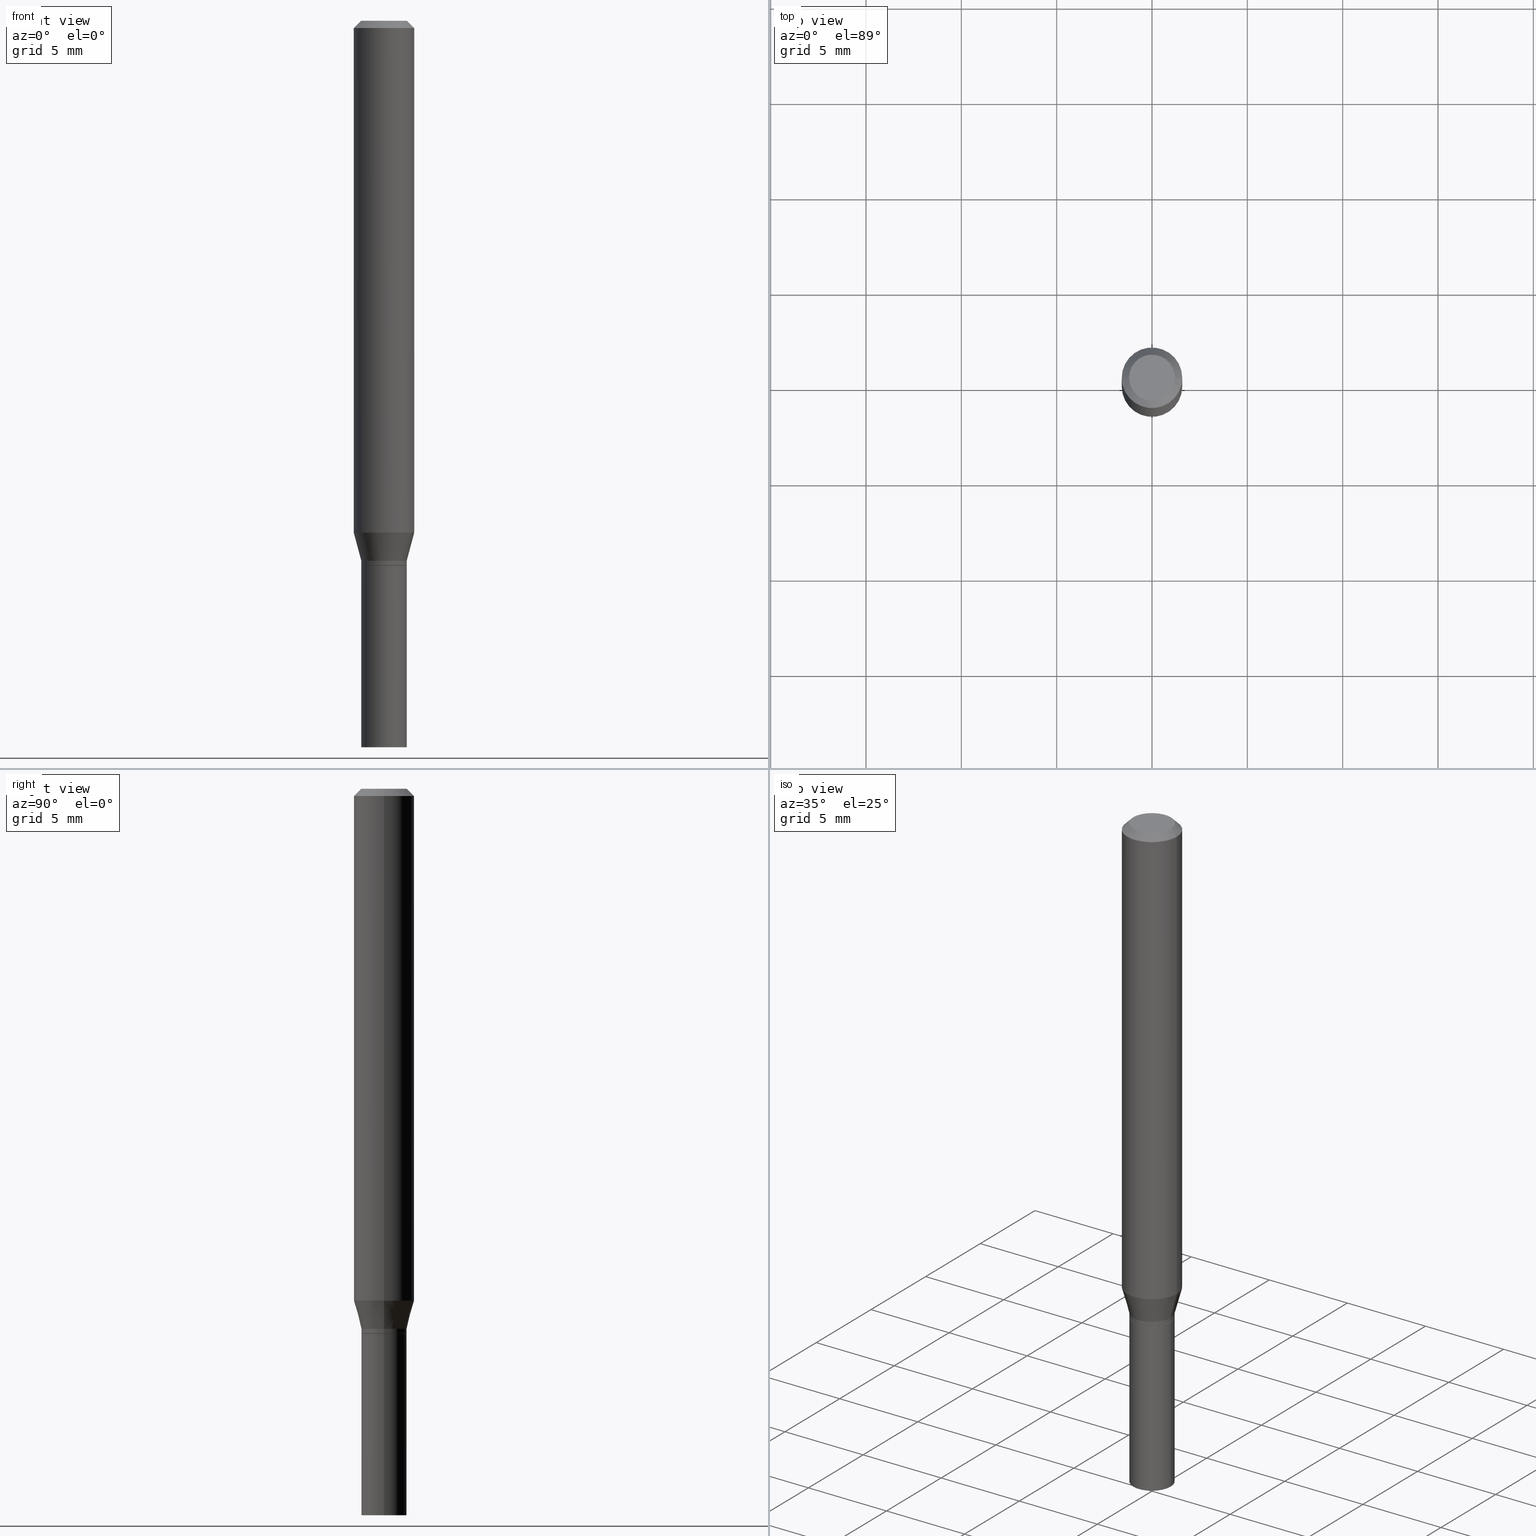
[diagram: canonical four-view strip — front | top / right | iso, engineering-drawing reading convention]
A machine part, canonical four-view strip (front | top / right | iso — engineering-drawing reading convention). The complete STEP part file that produces these views, byte-faithful:
ISO-10303-21;
HEADER;
FILE_DESCRIPTION (( 'STEP AP203' ),
    '1' );
FILE_NAME ('35301.STEP',
    '2024-03-13T16:39:58',
    ( '' ),
    ( '' ),
    'SwSTEP 2.0',
    'SolidWorks 2023',
    '' );
FILE_SCHEMA (( 'CONFIG_CONTROL_DESIGN' ));
ENDSEC;

DATA;
#1 = CARTESIAN_POINT ( 'NONE',  ( 2.726697718896427687E-29, -3.893001692810107575E-15, -1.115000000000000213 ) ) ;
#2 = DIRECTION ( 'NONE',  ( 1.000000000000000000, -6.982962677686266711E-15, 0.000000000000000000 ) ) ;
#3 = APPROVAL ( #191, 'UNSPECIFIED' ) ;
#4 = CARTESIAN_POINT ( 'NONE',  ( -0.04690000000000005970, -3.592926222457630359E-15, -1.124500000000000055 ) ) ;
#5 = DIRECTION ( 'NONE',  ( -1.000000000000000000, 6.982962677686266711E-15, 0.000000000000000000 ) ) ;
#6 = LOCAL_TIME ( 12, 39, 58.00000000000000000, #42 ) ;
#7 = CARTESIAN_POINT ( 'NONE',  ( 2.749929672555186430E-29, -3.926170765529117721E-15, -1.124500000000000055 ) ) ;
#8 = CIRCLE ( 'NONE', #80, 0.04639999999999999680 ) ;
#9 = EDGE_CURVE ( 'NONE', #27, #260, #128, .T. ) ;
#10 = CARTESIAN_POINT ( 'NONE',  ( 3.668203209277705088E-31, -5.237222008264718399E-17, -0.01499999999999999944 ) ) ;
#11 = DIRECTION ( 'NONE',  ( 0.7071067811865656694, -2.468850131082446387E-15, 0.7071067811865294761 ) ) ;
#12 = CARTESIAN_POINT ( 'NONE',  ( 3.316907271900976096E-16, 0.04749999999999999362, -2.863946871395908498E-16 ) ) ;
#13 = APPROVAL_DATE_TIME ( #201, #177 ) ;
#14 = APPROVAL_DATE_TIME ( #453, #255 ) ;
#15 = EDGE_CURVE ( 'NONE', #219, #146, #91, .T. ) ;
#16 = AXIS2_PLACEMENT_3D ( 'NONE', #160, #368, #300 ) ;
#17 = LOCAL_TIME ( 12, 39, 58.00000000000000000, #86 ) ;
#18 = EDGE_CURVE ( 'NONE', #219, #454, #232, .T. ) ;
#19 = CIRCLE ( 'NONE', #159, 0.04689999999999999725 ) ;
#20 = ORIENTED_EDGE ( 'NONE', *, *, #287, .F. ) ;
#21 = VERTEX_POINT ( 'NONE', #30 ) ;
#22 = ORGANIZATION ( 'UNSPECIFIED', 'UNSPECIFIED', '' ) ;
#23 = EDGE_LOOP ( 'NONE', ( #20, #416 ) ) ;
#24 = CARTESIAN_POINT ( 'NONE',  ( 2.584322543101508946E-29, -3.689727675106347649E-15, -1.056780007401926458 ) ) ;
#25 = EDGE_LOOP ( 'NONE', ( #102, #104, #178, #288 ) ) ;
#26 = DIRECTION ( 'NONE',  ( -2.445468806185136597E-29, 3.491481338843145583E-15, 1.000000000000000000 ) ) ;
#27 = VERTEX_POINT ( 'NONE', #4 ) ;
#28 = ORIENTED_EDGE ( 'NONE', *, *, #145, .T. ) ;
#29 = AXIS2_PLACEMENT_3D ( 'NONE', #256, #296, #73 ) ;
#30 = CARTESIAN_POINT ( 'NONE',  ( 0.04689999999999999725, -5.564722957848204079E-15, -1.500000000000000222 ) ) ;
#31 = LINE ( 'NONE', #83, #350 ) ;
#32 = PERSON_AND_ORGANIZATION ( #59, #22 ) ;
#33 = DIRECTION ( 'NONE',  ( 1.000000000000000000, -6.982962677686270655E-15, 0.000000000000000000 ) ) ;
#34 = APPLICATION_CONTEXT ( 'configuration controlled 3d designs of mechanical parts and assemblies' ) ;
#35 = PERSON_AND_ORGANIZATION ( #59, #22 ) ;
#36 = FACE_OUTER_BOUND ( 'NONE', #69, .T. ) ;
#37 = LINE ( 'NONE', #273, #89 ) ;
#38 = MANIFOLD_SOLID_BREP ( 'Body-Move/Copy2[2]', #90 ) ;
#39 = DIRECTION ( 'NONE',  ( -2.445468806185136597E-29, 3.491481338843145583E-15, 1.000000000000000000 ) ) ;
#40 = CIRCLE ( 'NONE', #99, 0.04690000000000005970 ) ;
#41 = CARTESIAN_POINT ( 'NONE',  ( 0.06250000000000000000, -4.126162842461739318E-15, -1.056780007401926458 ) ) ;
#42 = COORDINATED_UNIVERSAL_TIME_OFFSET ( 5, 0, .BEHIND. ) ;
#43 = CARTESIAN_POINT ( 'NONE',  ( -0.04689999999999999725, -4.249324714160141733E-15, -1.500000000000000222 ) ) ;
#44 = LINE ( 'NONE', #196, #319 ) ;
#45 = DIRECTION ( 'NONE',  ( -2.445468806185136877E-29, 3.491481338843145188E-15, 1.000000000000000000 ) ) ;
#46 = EDGE_CURVE ( 'NONE', #123, #21, #19, .T. ) ;
#47 = PERSON_AND_ORGANIZATION ( #59, #22 ) ;
#48 = DIRECTION ( 'NONE',  ( 1.000000000000000000, -6.982962677686265922E-15, 4.876176775795935793E-29 ) ) ;
#49 = EDGE_LOOP ( 'NONE', ( #125, #391, #353, #461 ) ) ;
#50 = PERSON_AND_ORGANIZATION_ROLE ( 'classification_officer' ) ;
#51 = DIRECTION ( 'NONE',  ( 1.000000000000000000, -6.982962677686268288E-15, 0.000000000000000000 ) ) ;
#52 = VECTOR ( 'NONE', #227, 39.37007874015748854 ) ;
#53 = ORIENTED_EDGE ( 'NONE', *, *, #287, .T. ) ;
#54 = EDGE_CURVE ( 'NONE', #454, #272, #222, .T. ) ;
#55 = FACE_OUTER_BOUND ( 'NONE', #250, .T. ) ;
#56 = SECURITY_CLASSIFICATION ( '', '', #448 ) ;
#57 =( CONVERSION_BASED_UNIT ( 'INCH', #213 ) LENGTH_UNIT ( ) NAMED_UNIT ( #151 ) );
#58 = CARTESIAN_POINT ( 'NONE',  ( 3.668203209277704895E-29, -5.237222008264718177E-15, -1.500000000000000222 ) ) ;
#59 = PERSON ( 'UNSPECIFIED', 'UNSPECIFIED', 'UNSPECIFIED', ('UNSPECIFIED'), ('UNSPECIFIED'), ('UNSPECIFIED') ) ;
#60 = CIRCLE ( 'NONE', #388, 0.06250000000000000000 ) ;
#61 = EDGE_CURVE ( 'NONE', #383, #62, #465, .T. ) ;
#62 = VERTEX_POINT ( 'NONE', #325 ) ;
#63 = ADVANCED_BREP_SHAPE_REPRESENTATION ( '35301', ( #360, #38, #245 ), #455 ) ;
#64 = VERTEX_POINT ( 'NONE', #144 ) ;
#65 = DIRECTION ( 'NONE',  ( -2.445468806185136597E-29, 3.491481338843145583E-15, 1.000000000000000000 ) ) ;
#66 = CONICAL_SURFACE ( 'NONE', #98, 0.06250000000000000000, 0.7853981633974563836 ) ;
#67 = ORIENTED_EDGE ( 'NONE', *, *, #199, .F. ) ;
#68 = AXIS2_PLACEMENT_3D ( 'NONE', #321, #105, #251 ) ;
#69 = EDGE_LOOP ( 'NONE', ( #415, #425, #185, #100 ) ) ;
#70 = VERTEX_POINT ( 'NONE', #357 ) ;
#71 = DIRECTION ( 'NONE',  ( 1.000000000000000000, -6.982962677686256455E-15, 0.000000000000000000 ) ) ;
#72 = CIRCLE ( 'NONE', #68, 0.06250000000000000000 ) ;
#73 = DIRECTION ( 'NONE',  ( 1.000000000000000000, -6.982962677686267499E-15, 4.852736867747366768E-29 ) ) ;
#74 = APPLICATION_PROTOCOL_DEFINITION ( 'international standard', 'config_control_design', 1994, #34 ) ;
#75 = ADVANCED_FACE ( 'NONE', ( #110 ), #137, .T. ) ;
#76 = CARTESIAN_POINT ( 'NONE',  ( 2.751152406958279232E-29, -3.927916506198539224E-15, -1.125000000000000222 ) ) ;
#77 = DIRECTION ( 'NONE',  ( -2.445468806185136597E-29, 3.491481338843145583E-15, 1.000000000000000000 ) ) ;
#78 = FACE_OUTER_BOUND ( 'NONE', #433, .T. ) ;
#79 = EDGE_CURVE ( 'NONE', #238, #320, #457, .T. ) ;
#80 = AXIS2_PLACEMENT_3D ( 'NONE', #114, #309, #343 ) ;
#81 = DIRECTION ( 'NONE',  ( 1.000000000000000000, -6.982962677686265922E-15, 4.876176775795935232E-29 ) ) ;
#82 = LINE ( 'NONE', #237, #240 ) ;
#83 = CARTESIAN_POINT ( 'NONE',  ( -0.04690000000000017766, -3.559757149738619424E-15, -1.115000000000000213 ) ) ;
#84 = DATE_TIME_ROLE ( 'classification_date' ) ;
#85 = DIRECTION ( 'NONE',  ( 1.000000000000000000, -6.982962677686268288E-15, 0.000000000000000000 ) ) ;
#86 = COORDINATED_UNIVERSAL_TIME_OFFSET ( 5, 0, .BEHIND. ) ;
#87 = CC_DESIGN_PERSON_AND_ORGANIZATION_ASSIGNMENT ( #130, #281, ( #322 ) ) ;
#88 = ORIENTED_EDGE ( 'NONE', *, *, #211, .F. ) ;
#89 = VECTOR ( 'NONE', #11, 39.37007874015748143 ) ;
#90 = CLOSED_SHELL ( 'NONE', ( #223, #243, #458, #195, #97, #75, #92, #295, #445, #334, #408, #462 ) ) ;
#91 = LINE ( 'NONE', #398, #356 ) ;
#92 = ADVANCED_FACE ( 'NONE', ( #112 ), #226, .T. ) ;
#93 = COORDINATED_UNIVERSAL_TIME_OFFSET ( 5, 0, .BEHIND. ) ;
#94 = CARTESIAN_POINT ( 'NONE',  ( -0.04690000000000017766, -3.402697807497452228E-15, -1.115000000000000213 ) ) ;
#95 = ORIENTED_EDGE ( 'NONE', *, *, #18, .F. ) ;
#96 = CARTESIAN_POINT ( 'NONE',  ( 3.668203209277705088E-31, -5.237222008264718399E-17, -0.01499999999999999944 ) ) ;
#97 = ADVANCED_FACE ( 'NONE', ( #183 ), #258, .T. ) ;
#98 = AXIS2_PLACEMENT_3D ( 'NONE', #96, #133, #417 ) ;
#99 = AXIS2_PLACEMENT_3D ( 'NONE', #7, #39, #51 ) ;
#100 = ORIENTED_EDGE ( 'NONE', *, *, #162, .F. ) ;
#101 = DIRECTION ( 'NONE',  ( 0.2588190451025214611, 1.565188264969620982E-15, 0.9659258262890679791 ) ) ;
#102 = ORIENTED_EDGE ( 'NONE', *, *, #280, .F. ) ;
#103 = APPROVAL_ROLE ( '' ) ;
#104 = ORIENTED_EDGE ( 'NONE', *, *, #154, .T. ) ;
#105 = DIRECTION ( 'NONE',  ( -2.445468806185136597E-29, 3.491481338843145583E-15, 1.000000000000000000 ) ) ;
#106 = ORIENTED_EDGE ( 'NONE', *, *, #119, .T. ) ;
#107 = CIRCLE ( 'NONE', #329, 0.04689999999999999725 ) ;
#108 = DIRECTION ( 'NONE',  ( 1.000000000000000000, -6.982962677686266711E-15, 0.000000000000000000 ) ) ;
#109 = ORIENTED_EDGE ( 'NONE', *, *, #15, .T. ) ;
#110 = FACE_OUTER_BOUND ( 'NONE', #25, .T. ) ;
#111 = AXIS2_PLACEMENT_3D ( 'NONE', #373, #189, #81 ) ;
#112 = FACE_OUTER_BOUND ( 'NONE', #289, .T. ) ;
#113 = DIRECTION ( 'NONE',  ( -2.445468806185136597E-29, 3.491481338843145583E-15, 1.000000000000000000 ) ) ;
#114 = CARTESIAN_POINT ( 'NONE',  ( 2.751152406958279232E-29, -3.927916506198539224E-15, -1.125000000000000222 ) ) ;
#115 = CARTESIAN_POINT ( 'NONE',  ( 3.275009495835134632E-16, 0.04689999999999607677, -1.125000000000000222 ) ) ;
#116 = FACE_OUTER_BOUND ( 'NONE', #361, .T. ) ;
#117 = DIRECTION ( 'NONE',  ( 2.445468806185136597E-29, -3.491481338843145583E-15, -1.000000000000000000 ) ) ;
#118 = AXIS2_PLACEMENT_3D ( 'NONE', #10, #77, #344 ) ;
#119 = EDGE_CURVE ( 'NONE', #454, #219, #72, .T. ) ;
#120 = CALENDAR_DATE ( 2024, 13, 3 ) ;
#121 = CARTESIAN_POINT ( 'NONE',  ( 2.749929672555186430E-29, -3.926170765529117721E-15, -1.124500000000000055 ) ) ;
#122 = AXIS2_PLACEMENT_3D ( 'NONE', #24, #290, #33 ) ;
#123 = VERTEX_POINT ( 'NONE', #43 ) ;
#124 = CARTESIAN_POINT ( 'NONE',  ( 0.06250000000000000000, -4.811533449433679005E-16, -0.01499999999999999944 ) ) ;
#125 = ORIENTED_EDGE ( 'NONE', *, *, #18, .T. ) ;
#126 = ORIENTED_EDGE ( 'NONE', *, *, #46, .T. ) ;
#127 = EDGE_CURVE ( 'NONE', #70, #64, #8, .T. ) ;
#128 = LINE ( 'NONE', #277, #308 ) ;
#129 = CIRCLE ( 'NONE', #402, 0.04690000000000017766 ) ;
#130 = PERSON_AND_ORGANIZATION ( #59, #22 ) ;
#131 = CYLINDRICAL_SURFACE ( 'NONE', #348, 0.04690000000000012215 ) ;
#132 = EDGE_CURVE ( 'NONE', #224, #27, #40, .T. ) ;
#133 = DIRECTION ( 'NONE',  ( 2.445468806185136597E-29, -3.491481338843145583E-15, -1.000000000000000000 ) ) ;
#134 = ORIENTED_EDGE ( 'NONE', *, *, #216, .F. ) ;
#135 = FACE_OUTER_BOUND ( 'NONE', #242, .T. ) ;
#136 = APPROVAL_PERSON_ORGANIZATION ( #212, #255, #103 ) ;
#137 = CONICAL_SURFACE ( 'NONE', #293, 0.04690000000000017766, 0.2617993877991501850 ) ;
#138 = DIRECTION ( 'NONE',  ( -2.445468806185136597E-29, 3.491481338843145583E-15, 1.000000000000000000 ) ) ;
#139 = VECTOR ( 'NONE', #306, 39.37007874015748143 ) ;
#140 = ORIENTED_EDGE ( 'NONE', *, *, #434, .F. ) ;
#141 = APPROVAL_STATUS ( 'not_yet_approved' ) ;
#142 = ORIENTED_EDGE ( 'NONE', *, *, #313, .F. ) ;
#143 = ORIENTED_EDGE ( 'NONE', *, *, #79, .F. ) ;
#144 = CARTESIAN_POINT ( 'NONE',  ( -0.04639999999999999680, -3.595575449631741560E-15, -1.125000000000000222 ) ) ;
#145 = EDGE_CURVE ( 'NONE', #238, #146, #446, .T. ) ;
#146 = VERTEX_POINT ( 'NONE', #165 ) ;
#147 = DIRECTION ( 'NONE',  ( 1.000000000000000000, -6.982962677686271444E-15, 0.000000000000000000 ) ) ;
#148 = DIRECTION ( 'NONE',  ( -2.445468806185136597E-29, 3.491481338843145583E-15, 1.000000000000000000 ) ) ;
#149 = EDGE_LOOP ( 'NONE', ( #53, #253, #285, #181 ) ) ;
#150 = AXIS2_PLACEMENT_3D ( 'NONE', #121, #413, #85 ) ;
#151 = DIMENSIONAL_EXPONENTS ( 1.000000000000000000, 0.000000000000000000, 0.000000000000000000, 0.000000000000000000, 0.000000000000000000, 0.000000000000000000, 0.000000000000000000 ) ;
#152 = DIRECTION ( 'NONE',  ( 1.000000000000000000, -6.982962677686256455E-15, 0.000000000000000000 ) ) ;
#153 = ORIENTED_EDGE ( 'NONE', *, *, #349, .T. ) ;
#154 = EDGE_CURVE ( 'NONE', #260, #317, #424, .T. ) ;
#155 = DIRECTION ( 'NONE',  ( -2.445468806185136597E-29, 3.491481338843145583E-15, 1.000000000000000000 ) ) ;
#156 = CARTESIAN_POINT ( 'NONE',  ( 3.668203209277704895E-29, -5.237222008264718177E-15, -1.500000000000000222 ) ) ;
#157 = DIRECTION ( 'NONE',  ( -2.445468806185136597E-29, 3.491481338843145583E-15, 1.000000000000000000 ) ) ;
#158 = DIRECTION ( 'NONE',  ( -0.2588190451025214611, 5.211531920934550253E-15, 0.9659258262890679791 ) ) ;
#159 = AXIS2_PLACEMENT_3D ( 'NONE', #156, #65, #152 ) ;
#160 = CARTESIAN_POINT ( 'NONE',  ( 2.726697718896427687E-29, -3.893001692810107575E-15, -1.115000000000000213 ) ) ;
#161 = CARTESIAN_POINT ( 'NONE',  ( 2.751152406958279232E-29, -3.927916506198539224E-15, -1.125000000000000222 ) ) ;
#162 = EDGE_CURVE ( 'NONE', #27, #224, #341, .T. ) ;
#163 = DIRECTION ( 'NONE',  ( -2.445468806185136877E-29, 3.491481338843145188E-15, 1.000000000000000000 ) ) ;
#164 = PERSON_AND_ORGANIZATION_ROLE ( 'creator' ) ;
#165 = CARTESIAN_POINT ( 'NONE',  ( 0.06250000000000000000, -4.888073874380388472E-16, -0.01499999999999999944 ) ) ;
#166 = CARTESIAN_POINT ( 'NONE',  ( 5.895992206697911344E-45, -8.417914271318623889E-31, -2.410986470890829067E-16 ) ) ;
#167 = AXIS2_PLACEMENT_3D ( 'NONE', #331, #220, #108 ) ;
#168 = COORDINATED_UNIVERSAL_TIME_OFFSET ( 5, 0, .BEHIND. ) ;
#169 = EDGE_CURVE ( 'NONE', #317, #219, #172, .T. ) ;
#170 = ORIENTED_EDGE ( 'NONE', *, *, #127, .F. ) ;
#171 = DIRECTION ( 'NONE',  ( 1.000000000000000000, -6.982962677686266711E-15, 4.876176775795935793E-29 ) ) ;
#172 = LINE ( 'NONE', #312, #423 ) ;
#173 = CONICAL_SURFACE ( 'NONE', #200, 0.04639999999999999680, 0.7853981633974739252 ) ;
#174 = CONICAL_SURFACE ( 'NONE', #436, 0.06250000000000000000, 0.7853981633974563836 ) ;
#175 = ADVANCED_FACE ( 'NONE', ( #135 ), #450, .T. ) ;
#176 = DIRECTION ( 'NONE',  ( -2.445468806185136597E-29, 3.491481338843145583E-15, 1.000000000000000000 ) ) ;
#177 = APPROVAL ( #261, 'UNSPECIFIED' ) ;
#178 = ORIENTED_EDGE ( 'NONE', *, *, #169, .T. ) ;
#179 = LOCAL_TIME ( 12, 39, 58.00000000000000000, #93 ) ;
#180 = ORIENTED_EDGE ( 'NONE', *, *, #79, .T. ) ;
#181 = ORIENTED_EDGE ( 'NONE', *, *, #182, .F. ) ;
#182 = EDGE_CURVE ( 'NONE', #21, #383, #208, .T. ) ;
#183 = FACE_OUTER_BOUND ( 'NONE', #456, .T. ) ;
#184 = CARTESIAN_POINT ( 'NONE',  ( 3.668203209277705088E-31, -5.237222008264718399E-17, -0.01499999999999999944 ) ) ;
#185 = ORIENTED_EDGE ( 'NONE', *, *, #434, .T. ) ;
#186 = DIRECTION ( 'NONE',  ( 1.000000000000000000, -6.982962677686271444E-15, 0.000000000000000000 ) ) ;
#187 = CIRCLE ( 'NONE', #451, 0.04689999999999999725 ) ;
#188 = CARTESIAN_POINT ( 'NONE',  ( -0.06250000000000000000, 4.440892098500626162E-16, -3.074334431409316114E-30 ) ) ;
#189 = DIRECTION ( 'NONE',  ( -2.445468806185136597E-29, 3.491481338843145583E-15, 1.000000000000000000 ) ) ;
#190 = DIRECTION ( 'NONE',  ( -2.445468806185136597E-29, 3.491481338843145583E-15, 1.000000000000000000 ) ) ;
#191 = APPROVAL_STATUS ( 'not_yet_approved' ) ;
#192 = CARTESIAN_POINT ( 'NONE',  ( 0.04690000000000012215, -3.275009495834867406E-16, 2.286926907848299643E-30 ) ) ;
#193 = DIRECTION ( 'NONE',  ( 0.000000000000000000, 0.000000000000000000, 1.000000000000000000 ) ) ;
#194 = CC_DESIGN_APPROVAL ( #3, ( #56 ) ) ;
#195 = ADVANCED_FACE ( 'NONE', ( #304 ), #335, .T. ) ;
#196 = CARTESIAN_POINT ( 'NONE',  ( -0.04639999999999999680, -3.598224676805852761E-15, -1.125000000000000222 ) ) ;
#197 = EDGE_LOOP ( 'NONE', ( #427, #396, #393, #153 ) ) ;
#198 = CARTESIAN_POINT ( 'NONE',  ( 0.000000000000000000, 0.000000000000000000, 0.000000000000000000 ) ) ;
#199 = EDGE_CURVE ( 'NONE', #317, #260, #129, .T. ) ;
#200 = AXIS2_PLACEMENT_3D ( 'NONE', #161, #301, #262 ) ;
#201 = DATE_AND_TIME ( #120, #257 ) ;
#202 = AXIS2_PLACEMENT_3D ( 'NONE', #198, #190, #171 ) ;
#203 = DIRECTION ( 'NONE',  ( 0.7071067811865531239, -7.319954787623273400E-15, -0.7071067811865416886 ) ) ;
#204 = EDGE_LOOP ( 'NONE', ( #170, #142 ) ) ;
#205 =( LENGTH_UNIT ( ) NAMED_UNIT ( * ) SI_UNIT ( $, .METRE. ) );
#206 = DESIGN_CONTEXT ( 'detailed design', #274, 'design' ) ;
#207 = AXIS2_PLACEMENT_3D ( 'NONE', #115, #263, #407 ) ;
#208 = LINE ( 'NONE', #452, #286 ) ;
#209 = DATE_AND_TIME ( #385, #463 ) ;
#210 = AXIS2_PLACEMENT_3D ( 'NONE', #336, #157, #438 ) ;
#211 = EDGE_CURVE ( 'NONE', #320, #272, #437, .T. ) ;
#212 = PERSON_AND_ORGANIZATION ( #59, #22 ) ;
#213 = LENGTH_MEASURE_WITH_UNIT ( LENGTH_MEASURE( 0.02539999999999999897 ), #205 );
#214 = ORIENTED_EDGE ( 'NONE', *, *, #216, .T. ) ;
#215 = EDGE_LOOP ( 'NONE', ( #397, #307, #249, #221 ) ) ;
#216 = EDGE_CURVE ( 'NONE', #62, #383, #107, .T. ) ;
#217 = DIRECTION ( 'NONE',  ( -2.445468806185136597E-29, 3.491481338843145583E-15, 1.000000000000000000 ) ) ;
#218 = AXIS2_PLACEMENT_3D ( 'NONE', #428, #217, #297 ) ;
#219 = VERTEX_POINT ( 'NONE', #41 ) ;
#220 = DIRECTION ( 'NONE',  ( -2.445468806185136597E-29, 3.491481338843145583E-15, 1.000000000000000000 ) ) ;
#221 = ORIENTED_EDGE ( 'NONE', *, *, #154, .F. ) ;
#222 = LINE ( 'NONE', #188, #225 ) ;
#223 = ADVANCED_FACE ( 'NONE', ( #230 ), #365, .T. ) ;
#224 = VERTEX_POINT ( 'NONE', #332 ) ;
#225 = VECTOR ( 'NONE', #466, 39.37007874015748143 ) ;
#226 = CYLINDRICAL_SURFACE ( 'NONE', #218, 0.06250000000000000000 ) ;
#227 = DIRECTION ( 'NONE',  ( -0.7071067811865531239, 2.468850131082316225E-15, -0.7071067811865416886 ) ) ;
#228 = FACE_OUTER_BOUND ( 'NONE', #23, .T. ) ;
#229 = EDGE_CURVE ( 'NONE', #64, #27, #44, .T. ) ;
#230 = FACE_OUTER_BOUND ( 'NONE', #254, .T. ) ;
#231 = PLANE ( 'NONE',  #355 ) ;
#232 = CIRCLE ( 'NONE', #122, 0.06250000000000000000 ) ;
#233 = CALENDAR_DATE ( 2024, 13, 3 ) ;
#234 = PRODUCT_RELATED_PRODUCT_CATEGORY ( 'detail', '', ( #282 ) ) ;
#235 = CC_DESIGN_PERSON_AND_ORGANIZATION_ASSIGNMENT ( #279, #389, ( #282 ) ) ;
#236 = DIRECTION ( 'NONE',  ( -2.445468806185136597E-29, 3.491481338843145583E-15, 1.000000000000000000 ) ) ;
#237 = CARTESIAN_POINT ( 'NONE',  ( -0.04689999999999999725, 3.332445430714869676E-16, -2.306980557329550952E-30 ) ) ;
#238 = VERTEX_POINT ( 'NONE', #409 ) ;
#239 = CC_DESIGN_PERSON_AND_ORGANIZATION_ASSIGNMENT ( #371, #50, ( #56 ) ) ;
#240 = VECTOR ( 'NONE', #45, 39.37007874015748143 ) ;
#241 = CARTESIAN_POINT ( 'NONE',  ( 0.000000000000000000, 0.000000000000000000, 0.000000000000000000 ) ) ;
#242 = EDGE_LOOP ( 'NONE', ( #459, #126, #291, #134 ) ) ;
#243 = ADVANCED_FACE ( 'NONE', ( #116 ), #381, .T. ) ;
#244 = COORDINATED_UNIVERSAL_TIME_OFFSET ( 5, 0, .BEHIND. ) ;
#245 = AXIS2_PLACEMENT_3D ( 'NONE', #370, #193, #340 ) ;
#246 = AXIS2_PLACEMENT_3D ( 'NONE', #283, #420, #384 ) ;
#247 = ORIENTED_EDGE ( 'NONE', *, *, #326, .T. ) ;
#248 = APPLICATION_PROTOCOL_DEFINITION ( 'international standard', 'config_control_design', 1994, #274 ) ;
#249 = ORIENTED_EDGE ( 'NONE', *, *, #359, .T. ) ;
#250 = EDGE_LOOP ( 'NONE', ( #143, #28, #346, #88 ) ) ;
#251 = DIRECTION ( 'NONE',  ( 1.000000000000000000, -6.982962677686270655E-15, 0.000000000000000000 ) ) ;
#252 = CLOSED_SHELL ( 'NONE', ( #426, #382, #175, #440 ) ) ;
#253 = ORIENTED_EDGE ( 'NONE', *, *, #298, .T. ) ;
#254 = EDGE_LOOP ( 'NONE', ( #362, #275, #67, #323 ) ) ;
#255 = APPROVAL ( #141, 'UNSPECIFIED' ) ;
#256 = CARTESIAN_POINT ( 'NONE',  ( 5.895992206697911344E-45, -8.417914271318623889E-31, -2.410986470890829067E-16 ) ) ;
#257 = LOCAL_TIME ( 12, 39, 58.00000000000000000, #168 ) ;
#258 = CONICAL_SURFACE ( 'NONE', #314, 0.04690000000000017766, 0.2617993877991501850 ) ;
#259 = CALENDAR_DATE ( 2024, 13, 3 ) ;
#260 = VERTEX_POINT ( 'NONE', #94 ) ;
#261 = APPROVAL_STATUS ( 'not_yet_approved' ) ;
#262 = DIRECTION ( 'NONE',  ( 1.000000000000000000, -6.982962677686266711E-15, 0.000000000000000000 ) ) ;
#263 = DIRECTION ( 'NONE',  ( 2.438088387897960049E-29, -3.491481338843145188E-15, -1.000000000000000000 ) ) ;
#264 = DATE_AND_TIME ( #233, #6 ) ;
#265 = CARTESIAN_POINT ( 'NONE',  ( 2.751152406958279232E-29, -3.927916506198539224E-15, -1.125000000000000222 ) ) ;
#266 = FACE_OUTER_BOUND ( 'NONE', #204, .T. ) ;
#267 = APPROVAL_PERSON_ORGANIZATION ( #35, #3, #367 ) ;
#268 = AXIS2_PLACEMENT_3D ( 'NONE', #442, #378, #374 ) ;
#269 = SHAPE_DEFINITION_REPRESENTATION ( #421, #63 ) ;
#270 = DIRECTION ( 'NONE',  ( -2.445468806185136597E-29, 3.491481338843145583E-15, 1.000000000000000000 ) ) ;
#271 = CARTESIAN_POINT ( 'NONE',  ( 3.668203209277705088E-31, -5.237222008264718399E-17, -0.01499999999999999944 ) ) ;
#272 = VERTEX_POINT ( 'NONE', #364 ) ;
#273 = CARTESIAN_POINT ( 'NONE',  ( 0.04639999999999999680, -4.251925974443182119E-15, -1.125000000000000222 ) ) ;
#274 = APPLICATION_CONTEXT ( 'configuration controlled 3d designs of mechanical parts and assemblies' ) ;
#275 = ORIENTED_EDGE ( 'NONE', *, *, #9, .T. ) ;
#276 = CARTESIAN_POINT ( 'NONE',  ( -0.06250000000000000000, -3.245638465256284638E-15, -1.056780007401926458 ) ) ;
#277 = CARTESIAN_POINT ( 'NONE',  ( -0.04690000000000012215, 3.332445430714878551E-16, -2.306980557329556558E-30 ) ) ;
#278 = VECTOR ( 'NONE', #203, 39.37007874015748854 ) ;
#279 = PERSON_AND_ORGANIZATION ( #59, #22 ) ;
#280 = EDGE_CURVE ( 'NONE', #260, #454, #31, .T. ) ;
#281 = PERSON_AND_ORGANIZATION_ROLE ( 'creator' ) ;
#282 = PRODUCT ( '35301', '35301', '', ( #302 ) ) ;
#283 = CARTESIAN_POINT ( 'NONE',  ( 0.000000000000000000, 0.000000000000000000, 0.000000000000000000 ) ) ;
#284 = FACE_OUTER_BOUND ( 'NONE', #215, .T. ) ;
#285 = ORIENTED_EDGE ( 'NONE', *, *, #61, .F. ) ;
#286 = VECTOR ( 'NONE', #163, 39.37007874015748143 ) ;
#287 = EDGE_CURVE ( 'NONE', #21, #123, #187, .T. ) ;
#288 = ORIENTED_EDGE ( 'NONE', *, *, #119, .F. ) ;
#289 = EDGE_LOOP ( 'NONE', ( #315, #106, #109, #327 ) ) ;
#290 = DIRECTION ( 'NONE',  ( -2.445468806185136597E-29, 3.491481338843145583E-15, 1.000000000000000000 ) ) ;
#291 = ORIENTED_EDGE ( 'NONE', *, *, #182, .T. ) ;
#292 = CARTESIAN_POINT ( 'NONE',  ( 2.726697718896427687E-29, -3.893001692810107575E-15, -1.115000000000000213 ) ) ;
#293 = AXIS2_PLACEMENT_3D ( 'NONE', #1, #155, #147 ) ;
#294 = EDGE_LOOP ( 'NONE', ( #431, #214 ) ) ;
#295 = ADVANCED_FACE ( 'NONE', ( #333 ), #174, .T. ) ;
#296 = DIRECTION ( 'NONE',  ( -2.445468806185136597E-29, 3.491481338843145583E-15, 1.000000000000000000 ) ) ;
#297 = DIRECTION ( 'NONE',  ( 1.000000000000000000, -6.982962677686266711E-15, 4.876176775795935793E-29 ) ) ;
#298 = EDGE_CURVE ( 'NONE', #123, #62, #82, .T. ) ;
#299 = CIRCLE ( 'NONE', #412, 0.04749999999999999362 ) ;
#300 = DIRECTION ( 'NONE',  ( 1.000000000000000000, -6.982962677686271444E-15, 0.000000000000000000 ) ) ;
#301 = DIRECTION ( 'NONE',  ( -2.445468806185136597E-29, 3.491481338843145583E-15, 1.000000000000000000 ) ) ;
#302 = MECHANICAL_CONTEXT ( 'NONE', #34, 'mechanical' ) ;
#303 = DIRECTION ( 'NONE',  ( -0.7071067811865656694, 7.493145998870420424E-15, 0.7071067811865294761 ) ) ;
#304 = FACE_OUTER_BOUND ( 'NONE', #49, .T. ) ;
#305 = APPROVAL_DATE_TIME ( #338, #3 ) ;
#306 = DIRECTION ( 'NONE',  ( -2.445468806185136877E-29, 3.491481338843145188E-15, 1.000000000000000000 ) ) ;
#307 = ORIENTED_EDGE ( 'NONE', *, *, #162, .T. ) ;
#308 = VECTOR ( 'NONE', #419, 39.37007874015748143 ) ;
#309 = DIRECTION ( 'NONE',  ( -2.445468806185136597E-29, 3.491481338843145583E-15, 1.000000000000000000 ) ) ;
#310 = LINE ( 'NONE', #192, #139 ) ;
#311 = PERSON_AND_ORGANIZATION ( #59, #22 ) ;
#312 = CARTESIAN_POINT ( 'NONE',  ( 0.04690000000000017766, -4.220502642393595055E-15, -1.115000000000000213 ) ) ;
#313 = EDGE_CURVE ( 'NONE', #64, #70, #432, .T. ) ;
#314 = AXIS2_PLACEMENT_3D ( 'NONE', #292, #435, #401 ) ;
#315 = ORIENTED_EDGE ( 'NONE', *, *, #54, .F. ) ;
#316 = CARTESIAN_POINT ( 'NONE',  ( 0.000000000000000000, 0.000000000000000000, 0.000000000000000000 ) ) ;
#317 = VERTEX_POINT ( 'NONE', #369 ) ;
#318 = CC_DESIGN_PERSON_AND_ORGANIZATION_ASSIGNMENT ( #47, #164, ( #372 ) ) ;
#319 = VECTOR ( 'NONE', #303, 39.37007874015748143 ) ;
#320 = VERTEX_POINT ( 'NONE', #403 ) ;
#321 = CARTESIAN_POINT ( 'NONE',  ( 2.584322543101508946E-29, -3.689727675106347649E-15, -1.056780007401926458 ) ) ;
#322 = PRODUCT_DEFINITION ( 'UNKNOWN', '', #372, #206 ) ;
#323 = ORIENTED_EDGE ( 'NONE', *, *, #359, .F. ) ;
#324 = DATE_TIME_ROLE ( 'creation_date' ) ;
#325 = CARTESIAN_POINT ( 'NONE',  ( -0.04689999999999999725, -4.249324714160141733E-15, -1.125000000000000222 ) ) ;
#326 = EDGE_CURVE ( 'NONE', #320, #238, #299, .T. ) ;
#327 = ORIENTED_EDGE ( 'NONE', *, *, #349, .F. ) ;
#328 = CC_DESIGN_SECURITY_CLASSIFICATION ( #56, ( #372 ) ) ;
#329 = AXIS2_PLACEMENT_3D ( 'NONE', #76, #270, #406 ) ;
#330 = CC_DESIGN_DATE_AND_TIME_ASSIGNMENT ( #264, #84, ( #56 ) ) ;
#331 = CARTESIAN_POINT ( 'NONE',  ( 2.751152406958279232E-29, -3.927916506198539224E-15, -1.125000000000000222 ) ) ;
#332 = CARTESIAN_POINT ( 'NONE',  ( 0.04690000000000005970, -4.253671715112603623E-15, -1.124500000000000055 ) ) ;
#333 = FACE_OUTER_BOUND ( 'NONE', #197, .T. ) ;
#334 = ADVANCED_FACE ( 'NONE', ( #266 ), #410, .F. ) ;
#335 = CYLINDRICAL_SURFACE ( 'NONE', #202, 0.06250000000000000000 ) ;
#336 = CARTESIAN_POINT ( 'NONE',  ( 2.751152406958279232E-29, -3.927916506198539224E-15, -1.125000000000000222 ) ) ;
#337 = FACE_OUTER_BOUND ( 'NONE', #149, .T. ) ;
#338 = DATE_AND_TIME ( #259, #17 ) ;
#339 = DIRECTION ( 'NONE',  ( 1.000000000000000000, -6.982962677686266711E-15, 0.000000000000000000 ) ) ;
#340 = DIRECTION ( 'NONE',  ( 1.000000000000000000, 0.000000000000000000, 0.000000000000000000 ) ) ;
#341 = CIRCLE ( 'NONE', #150, 0.04690000000000005970 ) ;
#342 = DIRECTION ( 'NONE',  ( 1.000000000000000000, -6.982962677686266711E-15, 4.876176775795936353E-29 ) ) ;
#343 = DIRECTION ( 'NONE',  ( 1.000000000000000000, -6.982962677686266711E-15, 0.000000000000000000 ) ) ;
#344 = DIRECTION ( 'NONE',  ( 1.000000000000000000, -6.982962677686266711E-15, 0.000000000000000000 ) ) ;
#345 = CALENDAR_DATE ( 2024, 13, 3 ) ;
#346 = ORIENTED_EDGE ( 'NONE', *, *, #351, .T. ) ;
#347 = DIRECTION ( 'NONE',  ( -2.445468806185136597E-29, 3.491481338843145583E-15, 1.000000000000000000 ) ) ;
#348 = AXIS2_PLACEMENT_3D ( 'NONE', #241, #176, #386 ) ;
#349 = EDGE_CURVE ( 'NONE', #272, #146, #60, .T. ) ;
#350 = VECTOR ( 'NONE', #158, 39.37007874015748143 ) ;
#351 = EDGE_CURVE ( 'NONE', #146, #272, #444, .T. ) ;
#352 = UNCERTAINTY_MEASURE_WITH_UNIT (LENGTH_MEASURE( 1.000000000000000082E-05 ), #57, 'distance_accuracy_value', 'NONE');
#353 = ORIENTED_EDGE ( 'NONE', *, *, #351, .F. ) ;
#354 = ORIENTED_EDGE ( 'NONE', *, *, #280, .T. ) ;
#355 = AXIS2_PLACEMENT_3D ( 'NONE', #12, #441, #411 ) ;
#356 = VECTOR ( 'NONE', #460, 39.37007874015748143 ) ;
#357 = CARTESIAN_POINT ( 'NONE',  ( 0.04639999999999999680, -4.251925974443182119E-15, -1.125000000000000222 ) ) ;
#358 = ORIENTED_EDGE ( 'NONE', *, *, #169, .F. ) ;
#359 = EDGE_CURVE ( 'NONE', #224, #317, #310, .T. ) ;
#360 = MANIFOLD_SOLID_BREP ( 'Body-Move/Copy2[1]', #252 ) ;
#361 = EDGE_LOOP ( 'NONE', ( #392, #422, #449, #140 ) ) ;
#362 = ORIENTED_EDGE ( 'NONE', *, *, #132, .T. ) ;
#363 = AXIS2_PLACEMENT_3D ( 'NONE', #404, #380, #48 ) ;
#364 = CARTESIAN_POINT ( 'NONE',  ( -0.06250000000000000000, -1.426960737744434748E-15, -0.01499999999999999944 ) ) ;
#365 = CYLINDRICAL_SURFACE ( 'NONE', #111, 0.04690000000000012215 ) ;
#366 = CARTESIAN_POINT ( 'NONE',  ( 0.04689999999999999725, -4.255417455782025127E-15, -1.125000000000000222 ) ) ;
#367 = APPROVAL_ROLE ( '' ) ;
#368 = DIRECTION ( 'NONE',  ( -2.445468806185136597E-29, 3.491481338843145583E-15, 1.000000000000000000 ) ) ;
#369 = CARTESIAN_POINT ( 'NONE',  ( 0.04690000000000017766, -4.220502642393595055E-15, -1.115000000000000213 ) ) ;
#370 = CARTESIAN_POINT ( 'NONE',  ( 0.000000000000000000, 0.000000000000000000, 0.000000000000000000 ) ) ;
#371 = PERSON_AND_ORGANIZATION ( #59, #22 ) ;
#372 = PRODUCT_DEFINITION_FORMATION_WITH_SPECIFIED_SOURCE ( 'ANY', '', #282, .NOT_KNOWN. ) ;
#373 = CARTESIAN_POINT ( 'NONE',  ( 0.000000000000000000, 0.000000000000000000, 0.000000000000000000 ) ) ;
#374 = DIRECTION ( 'NONE',  ( 1.000000000000000000, -6.982962677686265922E-15, 4.876176775795935793E-29 ) ) ;
#375 = AXIS2_PLACEMENT_3D ( 'NONE', #265, #236, #2 ) ;
#376 = APPROVAL_ROLE ( '' ) ;
#377 = CARTESIAN_POINT ( 'NONE',  ( -0.06250000000000000000, 3.840629472727444916E-16, -0.01499999999999999944 ) ) ;
#378 = DIRECTION ( 'NONE',  ( -2.438088387897960049E-29, 3.491481338843145188E-15, 1.000000000000000000 ) ) ;
#379 = CC_DESIGN_PERSON_AND_ORGANIZATION_ASSIGNMENT ( #311, #405, ( #372 ) ) ;
#380 = DIRECTION ( 'NONE',  ( -2.438088387897960049E-29, 3.491481338843145188E-15, 1.000000000000000000 ) ) ;
#381 = CONICAL_SURFACE ( 'NONE', #375, 0.04639999999999999680, 0.7853981633974739252 ) ;
#382 = ADVANCED_FACE ( 'NONE', ( #228 ), #414, .F. ) ;
#383 = VERTEX_POINT ( 'NONE', #366 ) ;
#384 = DIRECTION ( 'NONE',  ( 1.000000000000000000, -6.982962677686266711E-15, 4.876176775795936353E-29 ) ) ;
#385 = CALENDAR_DATE ( 2024, 13, 3 ) ;
#386 = DIRECTION ( 'NONE',  ( 1.000000000000000000, -6.982962677686265922E-15, 4.876176775795935232E-29 ) ) ;
#387 = AXIS2_PLACEMENT_3D ( 'NONE', #316, #148, #342 ) ;
#388 = AXIS2_PLACEMENT_3D ( 'NONE', #271, #113, #339 ) ;
#389 = PERSON_AND_ORGANIZATION_ROLE ( 'design_owner' ) ;
#390 =( NAMED_UNIT ( * ) PLANE_ANGLE_UNIT ( ) SI_UNIT ( $, .RADIAN. ) );
#391 = ORIENTED_EDGE ( 'NONE', *, *, #54, .T. ) ;
#392 = ORIENTED_EDGE ( 'NONE', *, *, #127, .T. ) ;
#393 = ORIENTED_EDGE ( 'NONE', *, *, #211, .T. ) ;
#394 = CC_DESIGN_APPROVAL ( #255, ( #322 ) ) ;
#395 = CYLINDRICAL_SURFACE ( 'NONE', #387, 0.04689999999999999725 ) ;
#396 = ORIENTED_EDGE ( 'NONE', *, *, #326, .F. ) ;
#397 = ORIENTED_EDGE ( 'NONE', *, *, #9, .F. ) ;
#398 = CARTESIAN_POINT ( 'NONE',  ( 0.06250000000000000000, -4.364351673553916694E-16, 3.047610484872459871E-30 ) ) ;
#399 =( NAMED_UNIT ( * ) SI_UNIT ( $, .STERADIAN. ) SOLID_ANGLE_UNIT ( ) );
#400 = APPROVAL_PERSON_ORGANIZATION ( #32, #177, #376 ) ;
#401 = DIRECTION ( 'NONE',  ( 1.000000000000000000, -6.982962677686271444E-15, 0.000000000000000000 ) ) ;
#402 = AXIS2_PLACEMENT_3D ( 'NONE', #429, #26, #186 ) ;
#403 = CARTESIAN_POINT ( 'NONE',  ( -0.04749999999999999362, 3.578768372314206562E-16, -2.410986470890853225E-16 ) ) ;
#404 = CARTESIAN_POINT ( 'NONE',  ( 3.576687321579069994E-29, -5.368277968210015545E-15, -1.500000000000000222 ) ) ;
#405 = PERSON_AND_ORGANIZATION_ROLE ( 'design_supplier' ) ;
#406 = DIRECTION ( 'NONE',  ( 1.000000000000000000, -6.982962677686266711E-15, 0.000000000000000000 ) ) ;
#407 = DIRECTION ( 'NONE',  ( -1.000000000000000000, 6.982962677686265922E-15, -4.876176775795935793E-29 ) ) ;
#408 = ADVANCED_FACE ( 'NONE', ( #36 ), #173, .T. ) ;
#409 = CARTESIAN_POINT ( 'NONE',  ( 0.04749999999999999362, -4.035134999187582567E-16, -2.410986470890803429E-16 ) ) ;
#410 = PLANE ( 'NONE',  #268 ) ;
#411 = DIRECTION ( 'NONE',  ( -1.000000000000000000, 6.982962677686265922E-15, -4.876176775795935793E-29 ) ) ;
#412 = AXIS2_PLACEMENT_3D ( 'NONE', #166, #347, #447 ) ;
#413 = DIRECTION ( 'NONE',  ( -2.445468806185136597E-29, 3.491481338843145583E-15, 1.000000000000000000 ) ) ;
#414 = PLANE ( 'NONE',  #363 ) ;
#415 = ORIENTED_EDGE ( 'NONE', *, *, #229, .F. ) ;
#416 = ORIENTED_EDGE ( 'NONE', *, *, #46, .F. ) ;
#417 = DIRECTION ( 'NONE',  ( -1.000000000000000000, 6.982962677686266711E-15, 0.000000000000000000 ) ) ;
#418 = CC_DESIGN_APPROVAL ( #177, ( #372 ) ) ;
#419 = DIRECTION ( 'NONE',  ( -2.445468806185136877E-29, 3.491481338843145188E-15, 1.000000000000000000 ) ) ;
#420 = DIRECTION ( 'NONE',  ( -2.445468806185136597E-29, 3.491481338843145583E-15, 1.000000000000000000 ) ) ;
#421 = PRODUCT_DEFINITION_SHAPE ( 'NONE', 'NONE',  #322 ) ;
#422 = ORIENTED_EDGE ( 'NONE', *, *, #229, .T. ) ;
#423 = VECTOR ( 'NONE', #101, 39.37007874015748143 ) ;
#424 = CIRCLE ( 'NONE', #16, 0.04690000000000017766 ) ;
#425 = ORIENTED_EDGE ( 'NONE', *, *, #313, .T. ) ;
#426 = ADVANCED_FACE ( 'NONE', ( #337 ), #395, .T. ) ;
#427 = ORIENTED_EDGE ( 'NONE', *, *, #145, .F. ) ;
#428 = CARTESIAN_POINT ( 'NONE',  ( 0.000000000000000000, 0.000000000000000000, 0.000000000000000000 ) ) ;
#429 = CARTESIAN_POINT ( 'NONE',  ( 2.726697718896427687E-29, -3.893001692810107575E-15, -1.115000000000000213 ) ) ;
#430 = CC_DESIGN_DATE_AND_TIME_ASSIGNMENT ( #209, #324, ( #322 ) ) ;
#431 = ORIENTED_EDGE ( 'NONE', *, *, #61, .T. ) ;
#432 = CIRCLE ( 'NONE', #210, 0.04639999999999999680 ) ;
#433 = EDGE_LOOP ( 'NONE', ( #247, #180 ) ) ;
#434 = EDGE_CURVE ( 'NONE', #70, #224, #37, .T. ) ;
#435 = DIRECTION ( 'NONE',  ( -2.445468806185136597E-29, 3.491481338843145583E-15, 1.000000000000000000 ) ) ;
#436 = AXIS2_PLACEMENT_3D ( 'NONE', #184, #117, #5 ) ;
#437 = LINE ( 'NONE', #377, #52 ) ;
#438 = DIRECTION ( 'NONE',  ( 1.000000000000000000, -6.982962677686266711E-15, 0.000000000000000000 ) ) ;
#439 = PLANE ( 'NONE',  #207 ) ;
#440 = ADVANCED_FACE ( 'NONE', ( #443 ), #439, .F. ) ;
#441 = DIRECTION ( 'NONE',  ( 2.438088387897960049E-29, -3.491481338843145188E-15, -1.000000000000000000 ) ) ;
#442 = CARTESIAN_POINT ( 'NONE',  ( 2.751152406958279232E-29, -3.927916506198539224E-15, -1.125000000000000222 ) ) ;
#443 = FACE_OUTER_BOUND ( 'NONE', #294, .T. ) ;
#444 = CIRCLE ( 'NONE', #118, 0.06250000000000000000 ) ;
#445 = ADVANCED_FACE ( 'NONE', ( #78 ), #231, .F. ) ;
#446 = LINE ( 'NONE', #124, #278 ) ;
#447 = DIRECTION ( 'NONE',  ( 1.000000000000000000, -6.982962677686267499E-15, 4.852736867747366768E-29 ) ) ;
#448 = SECURITY_CLASSIFICATION_LEVEL ( 'unclassified' ) ;
#449 = ORIENTED_EDGE ( 'NONE', *, *, #132, .F. ) ;
#450 = CYLINDRICAL_SURFACE ( 'NONE', #246, 0.04689999999999999725 ) ;
#451 = AXIS2_PLACEMENT_3D ( 'NONE', #58, #138, #71 ) ;
#452 = CARTESIAN_POINT ( 'NONE',  ( 0.04689999999999999725, -3.275009495834859024E-16, 2.286926907848294038E-30 ) ) ;
#453 = DATE_AND_TIME ( #345, #179 ) ;
#454 = VERTEX_POINT ( 'NONE', #276 ) ;
#455 =( GEOMETRIC_REPRESENTATION_CONTEXT ( 3 ) GLOBAL_UNCERTAINTY_ASSIGNED_CONTEXT ( ( #352 ) ) GLOBAL_UNIT_ASSIGNED_CONTEXT ( ( #57, #390, #399 ) ) REPRESENTATION_CONTEXT ( 'NONE', 'WORKASPACE' ) );
#456 = EDGE_LOOP ( 'NONE', ( #464, #354, #95, #358 ) ) ;
#457 = CIRCLE ( 'NONE', #29, 0.04749999999999999362 ) ;
#458 = ADVANCED_FACE ( 'NONE', ( #55 ), #66, .T. ) ;
#459 = ORIENTED_EDGE ( 'NONE', *, *, #298, .F. ) ;
#460 = DIRECTION ( 'NONE',  ( -2.445468806185136877E-29, 3.491481338843145188E-15, 1.000000000000000000 ) ) ;
#461 = ORIENTED_EDGE ( 'NONE', *, *, #15, .F. ) ;
#462 = ADVANCED_FACE ( 'NONE', ( #284 ), #131, .T. ) ;
#463 = LOCAL_TIME ( 12, 39, 58.00000000000000000, #244 ) ;
#464 = ORIENTED_EDGE ( 'NONE', *, *, #199, .T. ) ;
#465 = CIRCLE ( 'NONE', #167, 0.04689999999999999725 ) ;
#466 = DIRECTION ( 'NONE',  ( -2.445468806185136877E-29, 3.491481338843145188E-15, 1.000000000000000000 ) ) ;
ENDSEC;
END-ISO-10303-21;
